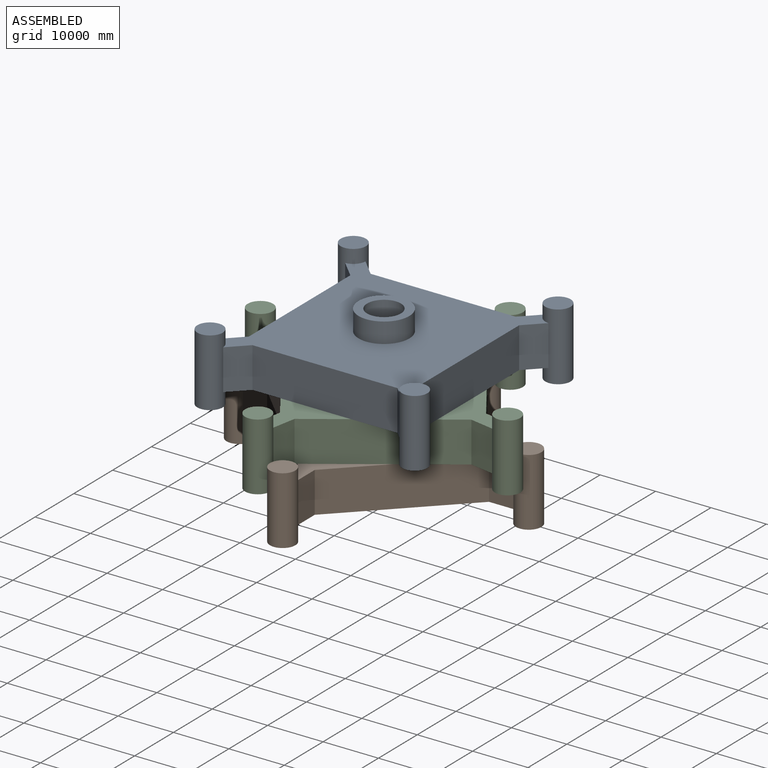
[diagram: assembled view]
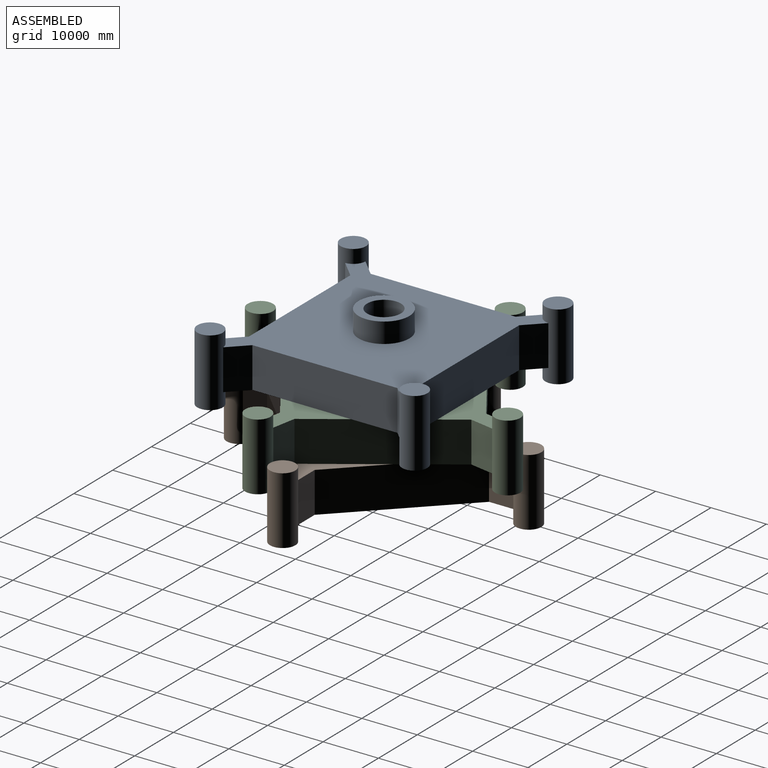
[diagram: assembled view, second angle]
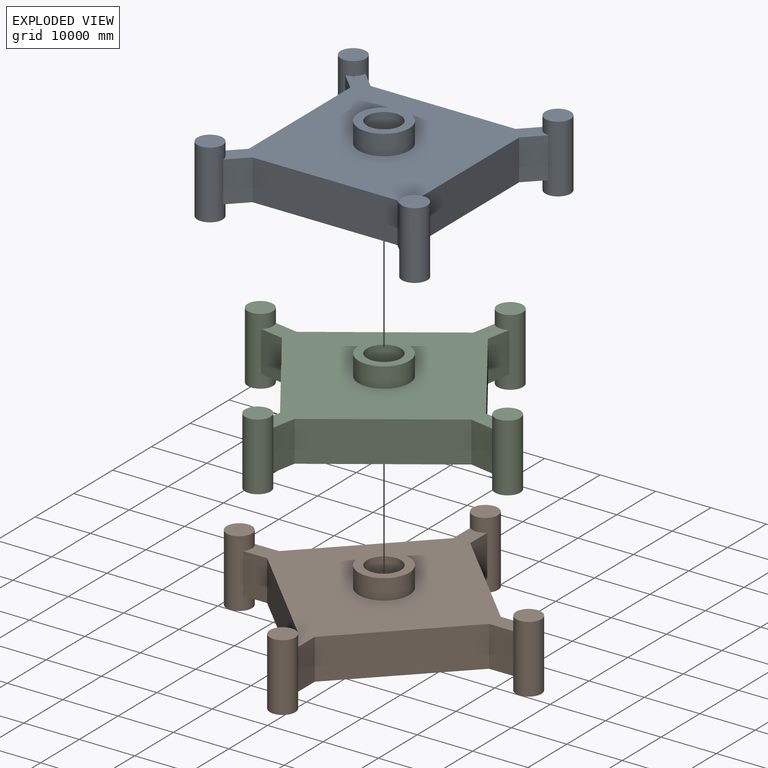
[diagram: exploded view]
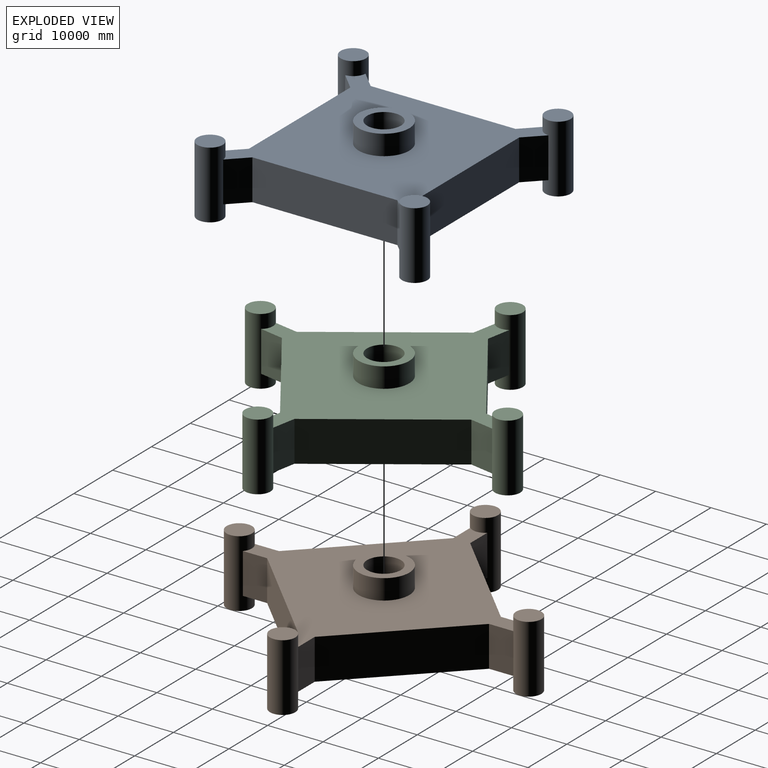
[diagram: exploded view, second angle]
ASSEMBLY  parts=3 mates=2
PART A: 31 faces, bbox 41517.8x41517.8x13411.2 mm
  f0: plane 26169.48x7315.2mm, normal (-1,0,0), area 191434958.6mm2, adj f5,f6,f12,f21
  f1: plane 26169.48x7315.2mm, normal (0,-1,0), area 191434958.6mm2, adj f5,f6,f25,f29
  f2: plane 26169.48x7315.2mm, normal (1,0,0), area 191434958.6mm2, adj f5,f6,f20,f30
  f3: plane 26169.48x7315.2mm, normal (0,1,0), area 191434958.6mm2, adj f5,f6,f11,f16
  f4: cylinder r=3048mm len=7315.2mm, axis (0,0,-1), area 140094483.8mm2, adj f8,f10
  f5: plane 36691.39x36691.39mm, normal (0,0,1), area 902752731.6mm2, adj f0,f1,f2,f3,f7,f11,f12,f13
  f6: plane 36691.39x36691.39mm, normal (0,0,-1), area 902752731.6mm2, adj f0,f1,f2,f3,f9,f11,f12,f13
  f7: cylinder r=4572mm len=9144mm, axis (0,0,-1), area 105070862.9mm2, adj f5,f8
  f8: plane 9144x9144mm, normal (0,0,1), area 36482938.5mm2, adj f4,f7
  f9: cylinder r=4572mm len=9144mm, axis (0,0,-1), area 105070862.9mm2, adj f6,f10
  f10: plane 9144x9144mm, normal (0,0,-1), area 36482938.5mm2, adj f4,f9
  f11: plane 7315.2x3105.7mm, normal (0.71,0.71,0), area 32129208.4mm2, adj f3,f5,f6,f13
  f12: plane 7315.2x3105.7mm, normal (-0.71,-0.71,0), area 32129208.4mm2, adj f0,f5,f6,f13
  f13: cylinder r=2286mm len=12192mm, axis (0,0,-1), area 150712294.4mm2, adj f5,f6,f11,f12,f14,f15
  f14: plane 4572x4572mm, normal (0,0,1), area 16417322.3mm2, adj f13
  f15: plane 4572x4572mm, normal (0,0,-1), area 16417322.3mm2, adj f13
  f16: plane 7315.2x3105.7mm, normal (-0.71,0.71,0), area 32129208.4mm2, adj f3,f5,f6,f17
  f17: cylinder r=2286mm len=12192mm, axis (0,0,-1), area 150712294.4mm2, adj f5,f6,f16,f18,f19,f20
  f18: plane 4572x4572mm, normal (0,0,1), area 16417322.3mm2, adj f17
  f19: plane 4572x4572mm, normal (0,0,-1), area 16417322.3mm2, adj f17
  f20: plane 7315.2x3105.7mm, normal (0.71,-0.71,0), area 32129208.4mm2, adj f2,f5,f6,f17
  f21: plane 7315.2x3105.7mm, normal (-0.71,0.71,0), area 32129208.4mm2, adj f0,f5,f6,f22
  f22: cylinder r=2286mm len=12192mm, axis (0,0,-1), area 150712294.4mm2, adj f5,f6,f21,f23,f24,f25
  f23: plane 4572x4572mm, normal (0,0,1), area 16417322.3mm2, adj f22
  f24: plane 4572x4572mm, normal (0,0,-1), area 16417322.3mm2, adj f22
  f25: plane 7315.2x3105.7mm, normal (0.71,-0.71,0), area 32129208.4mm2, adj f1,f5,f6,f22
  f26: cylinder r=2286mm len=12192mm, axis (0,0,-1), area 150712294.4mm2, adj f5,f6,f27,f28,f29,f30
  f27: plane 4572x4572mm, normal (0,0,1), area 16417322.3mm2, adj f26
  f28: plane 4572x4572mm, normal (0,0,-1), area 16417322.3mm2, adj f26
  f29: plane 7315.2x3105.7mm, normal (-0.71,-0.71,0), area 32129208.4mm2, adj f1,f5,f6,f26
  f30: plane 7315.2x3105.7mm, normal (0.71,0.71,0), area 32129208.4mm2, adj f2,f5,f6,f26
PART B: same geometry as A
PART C: same geometry as A
PLACE A t=(0,0,-10972.8)mm
PLACE B rot(axis=(0,0,1),135deg) t=(0,0,-25603.2)mm
PLACE C rot(axis=(0,0,1),34.4deg) t=(0,0,-18288)mm
MATE revolute C.f4 <-> B.f4  axis (0,0,-1) through (0,0,-14630.4)mm
MATE revolute A.f4 <-> C.f4  axis (0,0,-1) through (0,0,-7315.2)mm
